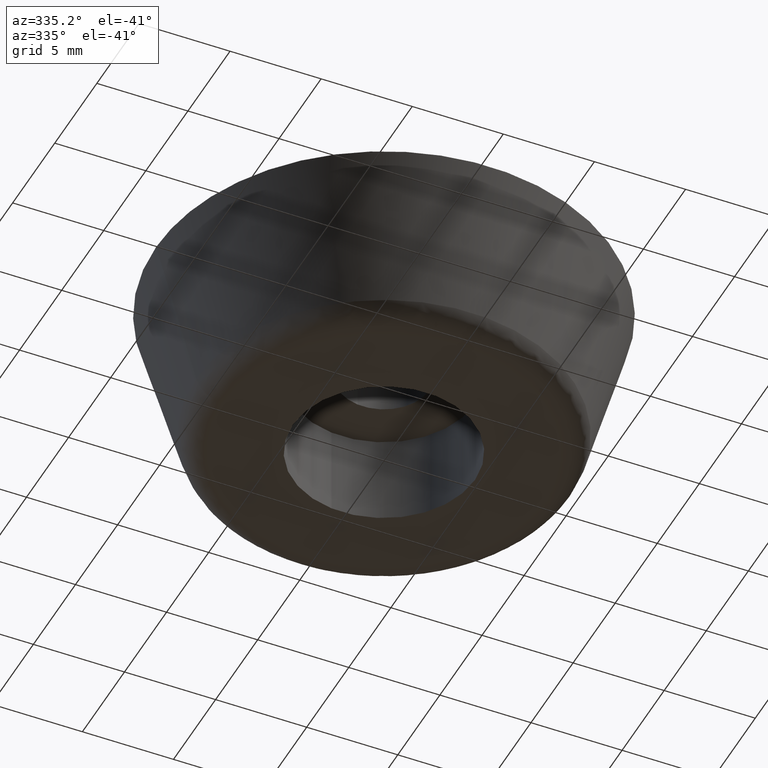
[diagram: clean part render]
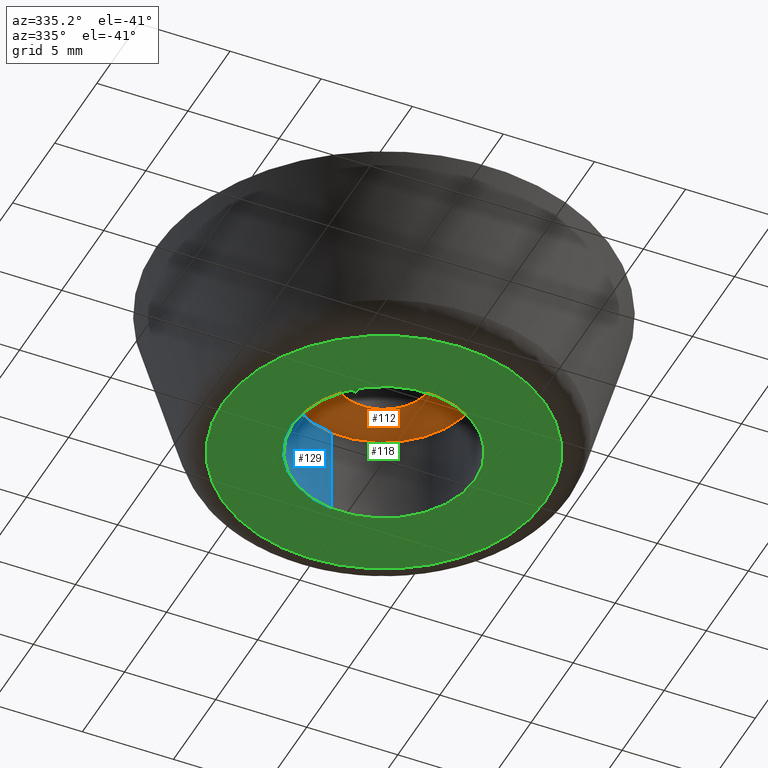
[diagram: same view with three faces highlighted in distinct colors, each labeled with its STEP entity id]
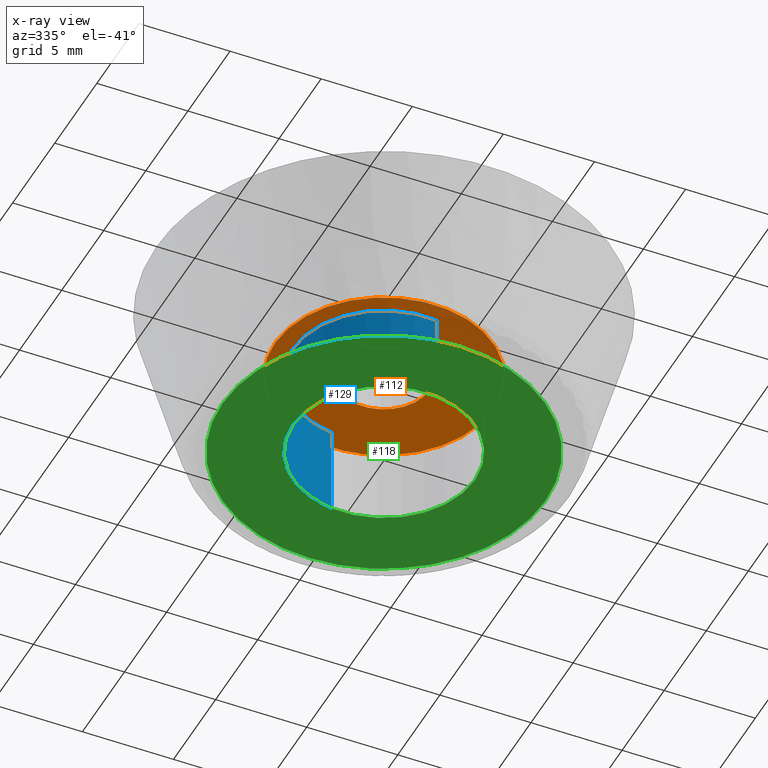
[diagram: x-ray of the same camera — body ghosted, the three highlighted faces saturated]
A machine part, auxiliary view with three faces highlighted in distinct colors.
The next image is the same camera in x-ray (body ghosted, the three faces saturated) — at least one of them is partly hidden behind the body in this view.
Their STEP definitions:

[orange] entity #112 — the highlighted planar face has unit normal (0, 0, 1).
#112=ADVANCED_FACE('',(#133,#134),#132,.F.);
#132=PLANE('',#341);
#133=FACE_OUTER_BOUND('',#342,.T.);
#134=FACE_BOUND('',#343,.T.);
#338=CARTESIAN_POINT('',(-1.16753839189E+001,-9.09478672820E+000,5.00000000000E+000));
#339=DIRECTION('',(0.00000000000E+000,0.00000000000E+000,1.00000000000E+000));
#340=DIRECTION('',(1.00000000000E+000,0.00000000000E+000,0.00000000000E+000));
#341=AXIS2_PLACEMENT_3D('',#338,#339,#340);
#342=EDGE_LOOP('',(#498,#499));
#343=EDGE_LOOP('',(#500,#501));
#498=ORIENTED_EDGE('',*,*,#582,.T.);
#499=ORIENTED_EDGE('',*,*,#583,.T.);
#500=ORIENTED_EDGE('',*,*,#584,.F.);
#501=ORIENTED_EDGE('',*,*,#585,.F.);
#582=EDGE_CURVE('',#624,#625,#626,.T.);
#583=EDGE_CURVE('',#625,#624,#632,.T.);
#584=EDGE_CURVE('',#638,#639,#640,.T.);
#585=EDGE_CURVE('',#639,#638,#646,.T.);
#624=VERTEX_POINT('',#904);
#625=VERTEX_POINT('',#905);
#626=CIRCLE('',#909,6.00000000000E+000);
#632=CIRCLE('',#913,6.00000000000E+000);
#638=VERTEX_POINT('',#914);
#639=VERTEX_POINT('',#915);
#640=CIRCLE('',#919,2.50000000000E+000);
#646=CIRCLE('',#923,2.50000000000E+000);
#904=CARTESIAN_POINT('',(7.08205350218E-001,-5.95805716504E+000,5.00000000000E+000));
#905=CARTESIAN_POINT('',(-7.08205407942E-001,5.95805715818E+000,5.00000000000E+000));
#906=CARTESIAN_POINT('',(1.77191594730E-012,8.07354183507E-013,5.00000000000E+000));
#907=DIRECTION('',(4.13002965160E-013,6.19067783001E-014,-1.00000000000E+000));
#908=DIRECTION('',(1.18034225036E-001,-9.93009527507E-001,-1.27255357390E-014));
#909=AXIS2_PLACEMENT_3D('',#906,#907,#908);
#910=CARTESIAN_POINT('',(1.77191594730E-012,8.07354183507E-013,5.00000000000E+000));
#911=DIRECTION('',(4.13002965160E-013,6.19067783001E-014,-1.00000000000E+000));
#912=DIRECTION('',(1.18034225036E-001,-9.93009527507E-001,-1.27255357390E-014));
#913=AXIS2_PLACEMENT_3D('',#910,#911,#912);
#914=CARTESIAN_POINT('',(2.95514653006E-001,-2.48247277726E+000,5.00000000000E+000));
#915=CARTESIAN_POINT('',(-2.95514653006E-001,2.48247277726E+000,5.00000000000E+000));
#916=CARTESIAN_POINT('',(1.33226762955E-015,1.33226762955E-015,5.00000000000E+000));
#917=DIRECTION('',(-8.56546396030E-015,-3.02587352680E-016,-1.00000000000E+000));
#918=DIRECTION('',(-1.18205861202E-001,9.92989110906E-001,7.12022097715E-016));
#919=AXIS2_PLACEMENT_3D('',#916,#917,#918);
#920=CARTESIAN_POINT('',(1.33226762955E-015,1.33226762955E-015,5.00000000000E+000));
#921=DIRECTION('',(-8.56546396030E-015,-3.02587352680E-016,-1.00000000000E+000));
#922=DIRECTION('',(-1.18205861202E-001,9.92989110906E-001,7.12022097715E-016));
#923=AXIS2_PLACEMENT_3D('',#920,#921,#922);

[blue] entity #129 — the highlighted cylindrical surface (partial cylindrical patch) has radius 5 mm, axis along (-0, -0, -1).
#129=ADVANCED_FACE('',(#309),#308,.F.);
#308=CYLINDRICAL_SURFACE('',#486,5.00000000000E+000);
#309=FACE_OUTER_BOUND('',#487,.T.);
#483=CARTESIAN_POINT('',(4.09403708589E-017,-2.04198900911E-018,2.50000000000E+000));
#484=DIRECTION('',(-8.43826895373E-015,-9.13573084373E-016,-1.00000000000E+000));
#485=DIRECTION('',(-1.18034234657E-001,9.93009526364E-001,8.88178419713E-017));
#486=AXIS2_PLACEMENT_3D('',#483,#484,#485);
#487=EDGE_LOOP('',(#570,#571,#572,#573));
#570=ORIENTED_EDGE('',*,*,#596,.T.);
#571=ORIENTED_EDGE('',*,*,#620,.F.);
#572=ORIENTED_EDGE('',*,*,#600,.F.);
#573=ORIENTED_EDGE('',*,*,#621,.T.);
#596=EDGE_CURVE('',#718,#719,#720,.T.);
#600=EDGE_CURVE('',#746,#747,#748,.T.);
#620=EDGE_CURVE('',#747,#719,#880,.T.);
#621=EDGE_CURVE('',#746,#718,#886,.T.);
#718=VERTEX_POINT('',#962);
#719=VERTEX_POINT('',#963);
#720=CIRCLE('',#967,4.99999999999E+000);
#746=VERTEX_POINT('',#982);
#747=VERTEX_POINT('',#983);
#748=CIRCLE('',#987,4.99999999999E+000);
#880=(BOUNDED_CURVE() B_SPLINE_CURVE(1,(#1067,#1068),.UNSPECIFIED.,.F.,.F.) B_SPLINE_CURVE_WITH_KNOTS((2,2),(8.33333383004E-002,9.16666664635E-001),.UNSPECIFIED.) CURVE() GEOMETRIC_REPRESENTATION_ITEM() RATIONAL_B_SPLINE_CURVE((1.00000000000E+000,1.00000000000E+000)) REPRESENTATION_ITEM('') );
#886=(BOUNDED_CURVE() B_SPLINE_CURVE(1,(#1069,#1070),.UNSPECIFIED.,.F.,.F.) B_SPLINE_CURVE_WITH_KNOTS((2,2),(8.33333333333E-002,9.16666666667E-001),.UNSPECIFIED.) CURVE() GEOMETRIC_REPRESENTATION_ITEM() RATIONAL_B_SPLINE_CURVE((7.50000000000E-001,7.50000000000E-001)) REPRESENTATION_ITEM('') );
#962=CARTESIAN_POINT('',(5.91029306033E-001,-4.96494555451E+000,2.97637915548E-016));
#963=CARTESIAN_POINT('',(-5.91029306010E-001,4.96494555452E+000,1.49509420730E-016));
#964=CARTESIAN_POINT('',(1.13309361893E-011,5.15054665584E-012,2.23573668139E-016));
#965=DIRECTION('',(-4.98139383684E-016,-7.42161656364E-017,-1.00000000000E+000));
#966=DIRECTION('',(-1.18205861205E-001,9.92989110905E-001,-1.48128494818E-017));
#967=AXIS2_PLACEMENT_3D('',#964,#965,#966);
#982=CARTESIAN_POINT('',(5.90169357594E-001,-4.96504784763E+000,5.00000000000E+000));
#983=CARTESIAN_POINT('',(-5.90171173284E-001,4.96504763181E+000,5.00000000000E+000));
#984=CARTESIAN_POINT('',(1.16071596779E-011,5.27533572381E-012,5.00000000000E+000));
#985=DIRECTION('',(4.26325641457E-015,6.87882458529E-016,-1.00000000000E+000));
#986=DIRECTION('',(1.18033871517E-001,-9.93009569528E-001,-1.79865204150E-016));
#987=AXIS2_PLACEMENT_3D('',#984,#985,#986);
#1067=CARTESIAN_POINT('',(-5.90171173285E-001,4.96504763182E+000,4.99999997020E+000));
#1068=CARTESIAN_POINT('',(-5.90171173285E-001,4.96504763182E+000,1.21923348084E-008));
#1069=CARTESIAN_POINT('',(5.90171173285E-001,-4.96504763182E+000,5.00000000000E+000));
#1070=CARTESIAN_POINT('',(5.90171173285E-001,-4.96504763182E+000,-5.92118946467E-016));

[green] entity #118 — the highlighted planar face has unit normal (0, 0, 1).
#118=ADVANCED_FACE('',(#195,#196),#194,.F.);
#194=PLANE('',#373);
#195=FACE_OUTER_BOUND('',#374,.T.);
#196=FACE_BOUND('',#375,.T.);
#370=CARTESIAN_POINT('',(-1.15178329833E+001,-1.84148971571E+001,0.00000000000E+000));
#371=DIRECTION('',(0.00000000000E+000,0.00000000000E+000,1.00000000000E+000));
#372=DIRECTION('',(1.00000000000E+000,0.00000000000E+000,0.00000000000E+000));
#373=AXIS2_PLACEMENT_3D('',#370,#371,#372);
#374=EDGE_LOOP('',(#522,#523));
#375=EDGE_LOOP('',(#524,#525));
#522=ORIENTED_EDGE('',*,*,#594,.T.);
#523=ORIENTED_EDGE('',*,*,#595,.T.);
#524=ORIENTED_EDGE('',*,*,#596,.F.);
#525=ORIENTED_EDGE('',*,*,#597,.F.);
#594=EDGE_CURVE('',#704,#705,#706,.T.);
#595=EDGE_CURVE('',#705,#704,#712,.T.);
#596=EDGE_CURVE('',#718,#719,#720,.T.);
#597=EDGE_CURVE('',#719,#718,#726,.T.);
#704=VERTEX_POINT('',#952);
#705=VERTEX_POINT('',#953);
#706=CIRCLE('',#957,8.85987152564E+000);
#712=CIRCLE('',#961,8.85987152564E+000);
#718=VERTEX_POINT('',#962);
#719=VERTEX_POINT('',#963);
#720=CIRCLE('',#967,4.99999999999E+000);
#726=CIRCLE('',#971,4.99999999999E+000);
#952=CARTESIAN_POINT('',(-8.85987152564E+000,-1.08498549643E-015,0.00000000000E+000));
#953=CARTESIAN_POINT('',(8.85987152564E+000,1.06581410364E-014,0.00000000000E+000));
#954=CARTESIAN_POINT('',(5.44669587257E-015,0.00000000000E+000,0.00000000000E+000));
#955=DIRECTION('',(0.00000000000E+000,0.00000000000E+000,-1.00000000000E+000));
#956=DIRECTION('',(-1.00000000000E+000,-0.00000000000E+000,-0.00000000000E+000));
#957=AXIS2_PLACEMENT_3D('',#954,#955,#956);
#958=CARTESIAN_POINT('',(5.44669587257E-015,0.00000000000E+000,0.00000000000E+000));
#959=DIRECTION('',(0.00000000000E+000,0.00000000000E+000,-1.00000000000E+000));
#960=DIRECTION('',(-1.00000000000E+000,-0.00000000000E+000,-0.00000000000E+000));
#961=AXIS2_PLACEMENT_3D('',#958,#959,#960);
#962=CARTESIAN_POINT('',(5.91029306033E-001,-4.96494555451E+000,2.97637915548E-016));
#963=CARTESIAN_POINT('',(-5.91029306010E-001,4.96494555452E+000,1.49509420730E-016));
#964=CARTESIAN_POINT('',(1.13309361893E-011,5.15054665584E-012,2.23573668139E-016));
#965=DIRECTION('',(-4.98139383684E-016,-7.42161656364E-017,-1.00000000000E+000));
#966=DIRECTION('',(-1.18205861205E-001,9.92989110905E-001,-1.48128494818E-017));
#967=AXIS2_PLACEMENT_3D('',#964,#965,#966);
#968=CARTESIAN_POINT('',(1.13309361893E-011,5.15054665584E-012,2.23573668139E-016));
#969=DIRECTION('',(-4.98139383684E-016,-7.42161656364E-017,-1.00000000000E+000));
#970=DIRECTION('',(-1.18205861205E-001,9.92989110905E-001,-1.48128494818E-017));
#971=AXIS2_PLACEMENT_3D('',#968,#969,#970);